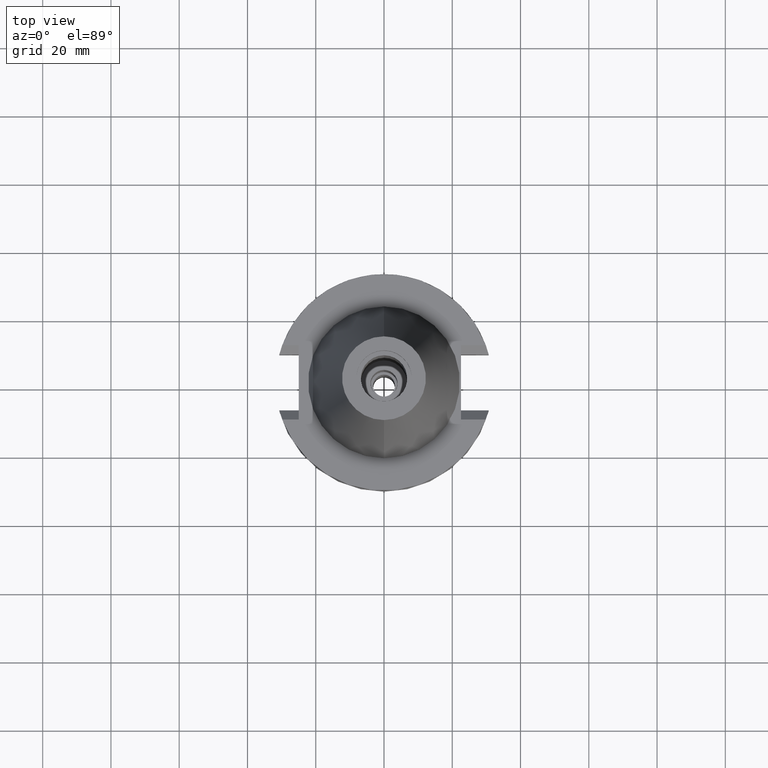
[diagram: clean part render]
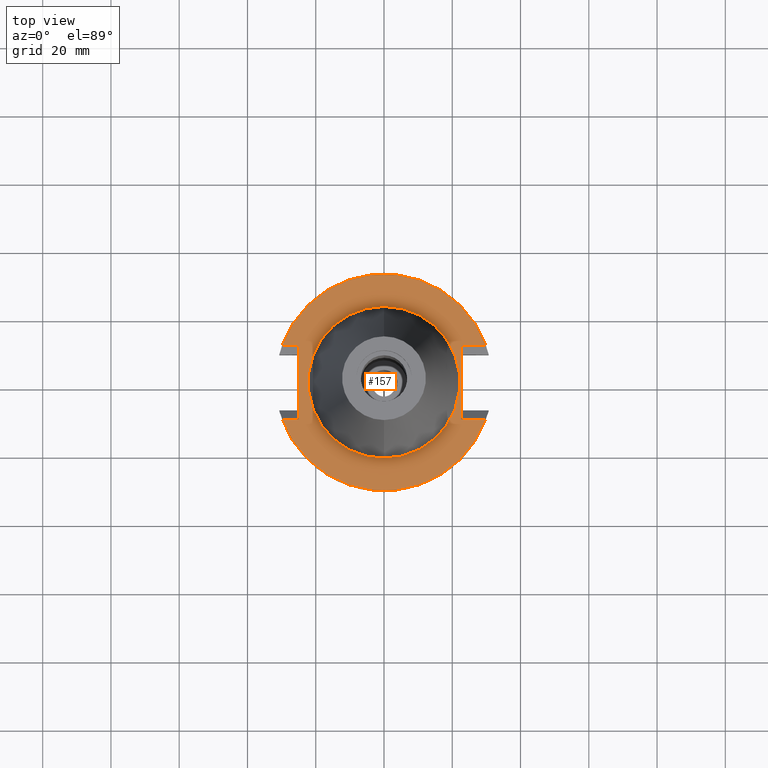
[diagram: same view with one face highlighted and labeled with its STEP entity id]
A machine part, top view. The second image highlights one B-rep face of the part: STEP entity #157.
In plain terms, the highlighted planar face has unit normal (0, 0, -1).
Its self-contained STEP definition (entity closure, byte-faithful):
#14 = DIRECTION ( 'NONE',  ( 0.0000000000000000000, -1.000000000000000000, 0.0000000000000000000 ) ) ;
#31 = LINE ( 'NONE', #1024, #2861 ) ;
#73 = ORIENTED_EDGE ( 'NONE', *, *, #2577, .F. ) ;
#142 = AXIS2_PLACEMENT_3D ( 'NONE', #2602, #1805, #3133 ) ;
#157 = ADVANCED_FACE ( 'NONE', ( #1289, #236 ), #2794, .F. ) ;
#169 = DIRECTION ( 'NONE',  ( 1.000000000000000000, 5.681214989743999571E-14, 0.0000000000000000000 ) ) ;
#172 = ORIENTED_EDGE ( 'NONE', *, *, #2233, .F. ) ;
#186 = DIRECTION ( 'NONE',  ( -1.000000000000000000, 8.434411386123999892E-14, 0.0000000000000000000 ) ) ;
#236 = FACE_BOUND ( 'NONE', #876, .T. ) ;
#293 = DIRECTION ( 'NONE',  ( 0.0000000000000000000, -1.000000000000000000, 0.0000000000000000000 ) ) ;
#314 = LINE ( 'NONE', #2658, #655 ) ;
#406 = CARTESIAN_POINT ( 'NONE',  ( 22.57000000000000028, 10.89000000000000057, -1.000000000000000000 ) ) ;
#408 = VERTEX_POINT ( 'NONE', #406 ) ;
#426 = CARTESIAN_POINT ( 'NONE',  ( -24.98000000000000043, -10.89000000000000057, -1.000000000000000000 ) ) ;
#503 = DIRECTION ( 'NONE',  ( 0.0000000000000000000, -1.000000000000000000, 0.0000000000000000000 ) ) ;
#641 = CIRCLE ( 'NONE', #2534, 22.22500000000000142 ) ;
#655 = VECTOR ( 'NONE', #2916, 1000.000000000000000 ) ;
#684 = LINE ( 'NONE', #426, #2637 ) ;
#705 = VERTEX_POINT ( 'NONE', #1633 ) ;
#717 = EDGE_CURVE ( 'NONE', #408, #2674, #314, .T. ) ;
#725 = CIRCLE ( 'NONE', #142, 31.75000000000000000 ) ;
#734 = CARTESIAN_POINT ( 'NONE',  ( 0.0000000000000000000, -22.22500000000000142, -1.000000000000000000 ) ) ;
#792 = CIRCLE ( 'NONE', #1225, 22.22500000000000142 ) ;
#815 = EDGE_CURVE ( 'NONE', #408, #1746, #1321, .T. ) ;
#876 = EDGE_LOOP ( 'NONE', ( #930, #172 ) ) ;
#930 = ORIENTED_EDGE ( 'NONE', *, *, #1329, .F. ) ;
#995 = CARTESIAN_POINT ( 'NONE',  ( -24.98000000000000043, -10.89000000000000057, -1.000000000000000000 ) ) ;
#1022 = CARTESIAN_POINT ( 'NONE',  ( 29.82399034335000110, -10.89000000000000057, -1.000000000001000089 ) ) ;
#1024 = CARTESIAN_POINT ( 'NONE',  ( -24.98000000000000043, 10.89000000000000057, -1.000000000000000000 ) ) ;
#1044 = CIRCLE ( 'NONE', #2948, 31.75000000000000000 ) ;
#1056 = CARTESIAN_POINT ( 'NONE',  ( 22.57000000000000028, 10.89000000000000057, -1.000000000000000000 ) ) ;
#1091 = VERTEX_POINT ( 'NONE', #3026 ) ;
#1099 = LINE ( 'NONE', #2161, #2193 ) ;
#1225 = AXIS2_PLACEMENT_3D ( 'NONE', #2887, #3092, #293 ) ;
#1289 = FACE_OUTER_BOUND ( 'NONE', #3180, .T. ) ;
#1321 = LINE ( 'NONE', #1056, #3178 ) ;
#1329 = EDGE_CURVE ( 'NONE', #705, #2092, #641, .T. ) ;
#1362 = CARTESIAN_POINT ( 'NONE',  ( -29.82399034335000110, 10.89000000000000057, -1.000000000000000000 ) ) ;
#1370 = ORIENTED_EDGE ( 'NONE', *, *, #717, .T. ) ;
#1440 = ORIENTED_EDGE ( 'NONE', *, *, #815, .F. ) ;
#1633 = CARTESIAN_POINT ( 'NONE',  ( 0.0000000000000000000, 22.22500000000000142, -1.000000000000000000 ) ) ;
#1656 = ORIENTED_EDGE ( 'NONE', *, *, #1940, .T. ) ;
#1737 = VERTEX_POINT ( 'NONE', #995 ) ;
#1746 = VERTEX_POINT ( 'NONE', #2041 ) ;
#1805 = DIRECTION ( 'NONE',  ( 0.0000000000000000000, 0.0000000000000000000, -1.000000000000000000 ) ) ;
#1880 = DIRECTION ( 'NONE',  ( -1.000000000000000000, -8.617768155387999131E-14, 0.0000000000000000000 ) ) ;
#1886 = CARTESIAN_POINT ( 'NONE',  ( -24.98000000000000043, 10.89000000000000057, -1.000000000000000000 ) ) ;
#1940 = EDGE_CURVE ( 'NONE', #1737, #1091, #684, .T. ) ;
#1946 = AXIS2_PLACEMENT_3D ( 'NONE', #2330, #2055, #14 ) ;
#1951 = ORIENTED_EDGE ( 'NONE', *, *, #2693, .T. ) ;
#2041 = CARTESIAN_POINT ( 'NONE',  ( 22.57000000000000028, -10.89000000000000057, -1.000000000000000000 ) ) ;
#2055 = DIRECTION ( 'NONE',  ( 0.0000000000000000000, 0.0000000000000000000, -1.000000000000000000 ) ) ;
#2068 = DIRECTION ( 'NONE',  ( 0.0000000000000000000, 1.000000000000000000, 0.0000000000000000000 ) ) ;
#2092 = VERTEX_POINT ( 'NONE', #734 ) ;
#2102 = DIRECTION ( 'NONE',  ( 0.0000000000000000000, -1.000000000000000000, 0.0000000000000000000 ) ) ;
#2161 = CARTESIAN_POINT ( 'NONE',  ( -24.98000000000000043, 10.89000000000000057, -1.000000000000000000 ) ) ;
#2193 = VECTOR ( 'NONE', #1880, 1000.000000000000000 ) ;
#2228 = LINE ( 'NONE', #2483, #2647 ) ;
#2233 = EDGE_CURVE ( 'NONE', #2092, #705, #792, .T. ) ;
#2327 = VERTEX_POINT ( 'NONE', #1886 ) ;
#2330 = CARTESIAN_POINT ( 'NONE',  ( 0.0000000000000000000, 0.0000000000000000000, -1.000000000000000000 ) ) ;
#2331 = CARTESIAN_POINT ( 'NONE',  ( 29.82399034335000110, 10.89000000000000057, -1.000000000001000089 ) ) ;
#2334 = ORIENTED_EDGE ( 'NONE', *, *, #2900, .F. ) ;
#2358 = CARTESIAN_POINT ( 'NONE',  ( 0.0000000000000000000, 0.0000000000000000000, -1.000000000000000000 ) ) ;
#2386 = ORIENTED_EDGE ( 'NONE', *, *, #3115, .F. ) ;
#2483 = CARTESIAN_POINT ( 'NONE',  ( 22.57000000000000028, -10.89000000000000057, -1.000000000000000000 ) ) ;
#2534 = AXIS2_PLACEMENT_3D ( 'NONE', #2635, #2563, #2874 ) ;
#2563 = DIRECTION ( 'NONE',  ( 0.0000000000000000000, 0.0000000000000000000, 1.000000000000000000 ) ) ;
#2577 = EDGE_CURVE ( 'NONE', #1746, #3280, #2228, .T. ) ;
#2602 = CARTESIAN_POINT ( 'NONE',  ( 0.0000000000000000000, 0.0000000000000000000, -1.000000000000000000 ) ) ;
#2635 = CARTESIAN_POINT ( 'NONE',  ( 0.0000000000000000000, 0.0000000000000000000, -1.000000000000000000 ) ) ;
#2637 = VECTOR ( 'NONE', #186, 1000.000000000000000 ) ;
#2647 = VECTOR ( 'NONE', #169, 1000.000000000000000 ) ;
#2658 = CARTESIAN_POINT ( 'NONE',  ( 22.57000000000000028, 10.89000000000000057, -1.000000000000000000 ) ) ;
#2674 = VERTEX_POINT ( 'NONE', #2331 ) ;
#2693 = EDGE_CURVE ( 'NONE', #2327, #1737, #31, .T. ) ;
#2794 = PLANE ( 'NONE',  #1946 ) ;
#2859 = DIRECTION ( 'NONE',  ( 0.0000000000000000000, 0.0000000000000000000, -1.000000000000000000 ) ) ;
#2861 = VECTOR ( 'NONE', #503, 1000.000000000000000 ) ;
#2874 = DIRECTION ( 'NONE',  ( 0.0000000000000000000, 1.000000000000000000, 0.0000000000000000000 ) ) ;
#2886 = ORIENTED_EDGE ( 'NONE', *, *, #3196, .F. ) ;
#2887 = CARTESIAN_POINT ( 'NONE',  ( 0.0000000000000000000, 0.0000000000000000000, -1.000000000000000000 ) ) ;
#2900 = EDGE_CURVE ( 'NONE', #2327, #3315, #1099, .T. ) ;
#2916 = DIRECTION ( 'NONE',  ( 1.000000000000000000, -5.632238998453000112E-14, 0.0000000000000000000 ) ) ;
#2948 = AXIS2_PLACEMENT_3D ( 'NONE', #2358, #2859, #2068 ) ;
#3026 = CARTESIAN_POINT ( 'NONE',  ( -29.82399034335000110, -10.89000000000000057, -1.000000000001000089 ) ) ;
#3092 = DIRECTION ( 'NONE',  ( 0.0000000000000000000, 0.0000000000000000000, 1.000000000000000000 ) ) ;
#3115 = EDGE_CURVE ( 'NONE', #3315, #2674, #1044, .T. ) ;
#3133 = DIRECTION ( 'NONE',  ( 0.0000000000000000000, -1.000000000000000000, 0.0000000000000000000 ) ) ;
#3178 = VECTOR ( 'NONE', #2102, 1000.000000000000000 ) ;
#3180 = EDGE_LOOP ( 'NONE', ( #1370, #2386, #2334, #1951, #1656, #2886, #73, #1440 ) ) ;
#3196 = EDGE_CURVE ( 'NONE', #3280, #1091, #725, .T. ) ;
#3280 = VERTEX_POINT ( 'NONE', #1022 ) ;
#3315 = VERTEX_POINT ( 'NONE', #1362 ) ;